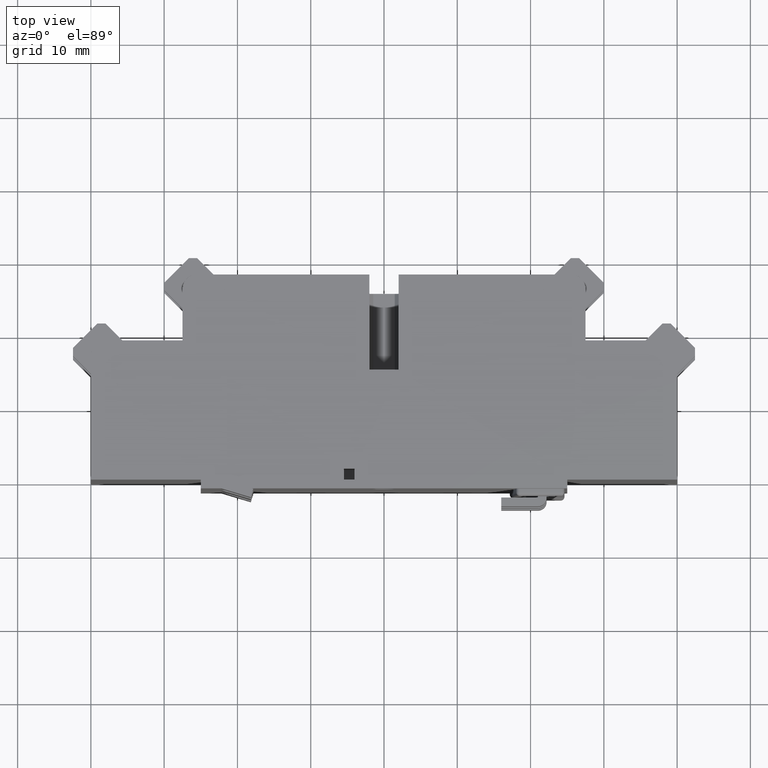
[diagram: clean part render]
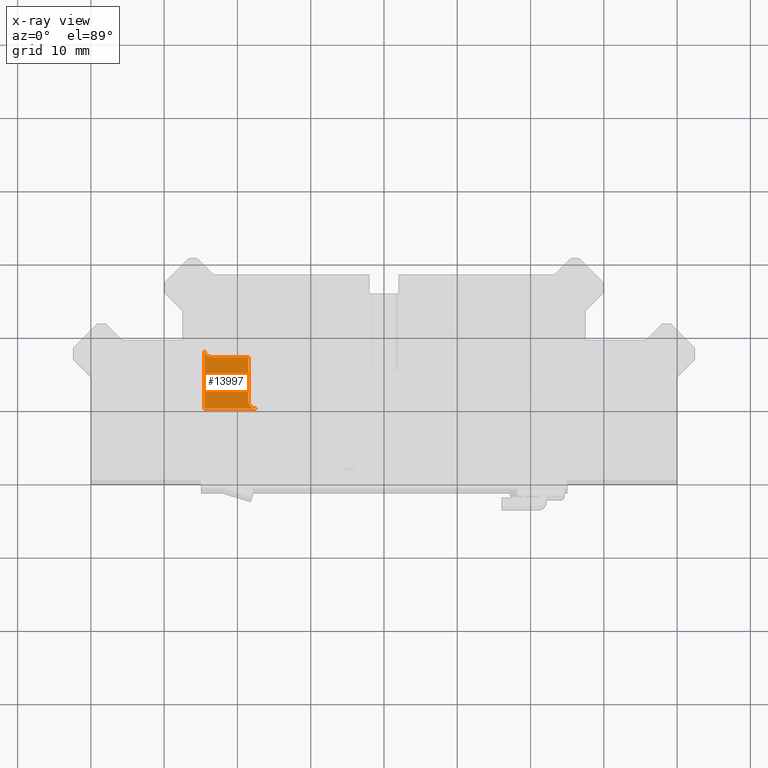
[diagram: x-ray — body ghosted, one internal face saturated and labeled with its STEP entity id]
A machine part, top view, then the same camera in x-ray: the body is ghosted and one INTERNAL B-rep face — a face not visible from any outside direction — is saturated and labeled: STEP entity #13997.
In plain terms, the highlighted planar face has unit normal (0, 0, 1).
Its self-contained STEP definition (entity closure, byte-faithful):
#13827=CARTESIAN_POINT('',(-17.500000000000000,9.879999999999994,-9.449999999999282));
#13828=VERTEX_POINT('',#13827);
#13835=CARTESIAN_POINT('',(-18.500000000000000,10.879999999999994,-9.449999999999282));
#13836=VERTEX_POINT('',#13835);
#13837=CARTESIAN_POINT('',(-17.500000000000000,10.879999999999994,-9.450000000000006));
#13838=DIRECTION('',(2.303421E-013,-2.303421E-013,1.0));
#13839=DIRECTION('',(-0.707106781186547,-0.707106781186548,3.213101E-046));
#13840=AXIS2_PLACEMENT_3D('',#13837,#13838,#13839);
#13841=CIRCLE('',#13840,1.0);
#13842=EDGE_CURVE('',#13836,#13828,#13841,.T.);
#13859=CARTESIAN_POINT('',(-18.500000000000000,16.879999999999992,-9.449999999999282));
#13860=VERTEX_POINT('',#13859);
#13861=CARTESIAN_POINT('',(-18.500000000000000,16.879999999999992,-9.450000000002772));
#13862=DIRECTION('',(0.0,-1.0,0.0));
#13863=VECTOR('',#13862,5.999999999999998);
#13864=LINE('',#13861,#13863);
#13865=EDGE_CURVE('',#13860,#13836,#13864,.T.);
#13900=CARTESIAN_POINT('',(-23.500000000000000,16.879999999999992,-9.449999999999282));
#13901=VERTEX_POINT('',#13900);
#13908=CARTESIAN_POINT('',(-24.500000000000000,17.879999999999995,-9.449999999999282));
#13909=VERTEX_POINT('',#13908);
#13910=CARTESIAN_POINT('',(-23.500000000000000,17.879999999999995,-9.450000000000006));
#13911=DIRECTION('',(2.303421E-013,-2.303421E-013,1.000000000000000));
#13912=DIRECTION('',(-0.707106781186547,-0.707106781186548,3.213101E-046));
#13913=AXIS2_PLACEMENT_3D('',#13910,#13911,#13912);
#13914=CIRCLE('',#13913,1.0);
#13915=EDGE_CURVE('',#13909,#13901,#13914,.T.);
#13939=CARTESIAN_POINT('',(-23.500000000000000,16.879999999999992,-9.450000000000467));
#13940=DIRECTION('',(1.0,0.0,-4.607870E-013));
#13941=VECTOR('',#13940,5.0);
#13942=LINE('',#13939,#13941);
#13943=EDGE_CURVE('',#13901,#13860,#13942,.T.);
#13962=CARTESIAN_POINT('',(-24.499999999999996,9.880000000000003,-9.450000000000006));
#13963=VERTEX_POINT('',#13962);
#13970=CARTESIAN_POINT('',(-24.500000000000000,9.879999999999997,-9.450000000000006));
#13971=DIRECTION('',(1.0,0.0,-4.605840E-013));
#13972=VECTOR('',#13971,7.0);
#13973=LINE('',#13970,#13972);
#13974=EDGE_CURVE('',#13963,#13828,#13973,.T.);
#13979=CARTESIAN_POINT('',(-24.499999999999996,20.500000000000000,-9.450000000000006));
#13980=DIRECTION('',(4.606841E-013,0.0,1.0));
#13981=DIRECTION('',(1.0,0.0,-4.606841E-013));
#13982=AXIS2_PLACEMENT_3D('',#13979,#13980,#13981);
#13983=PLANE('',#13982);
#13984=ORIENTED_EDGE('',*,*,#13915,.T.);
#13985=ORIENTED_EDGE('',*,*,#13943,.T.);
#13986=ORIENTED_EDGE('',*,*,#13865,.T.);
#13987=ORIENTED_EDGE('',*,*,#13842,.T.);
#13988=ORIENTED_EDGE('',*,*,#13974,.F.);
#13989=CARTESIAN_POINT('',(-24.499999999999996,17.879999999999995,-9.450000000000006));
#13990=DIRECTION('',(0.0,-1.0,0.0));
#13991=VECTOR('',#13990,7.999999999999993);
#13992=LINE('',#13989,#13991);
#13993=EDGE_CURVE('',#13909,#13963,#13992,.T.);
#13994=ORIENTED_EDGE('',*,*,#13993,.F.);
#13995=EDGE_LOOP('',(#13984,#13985,#13986,#13987,#13988,#13994));
#13996=FACE_OUTER_BOUND('',#13995,.T.);
#13997=ADVANCED_FACE('',(#13996),#13983,.F.);